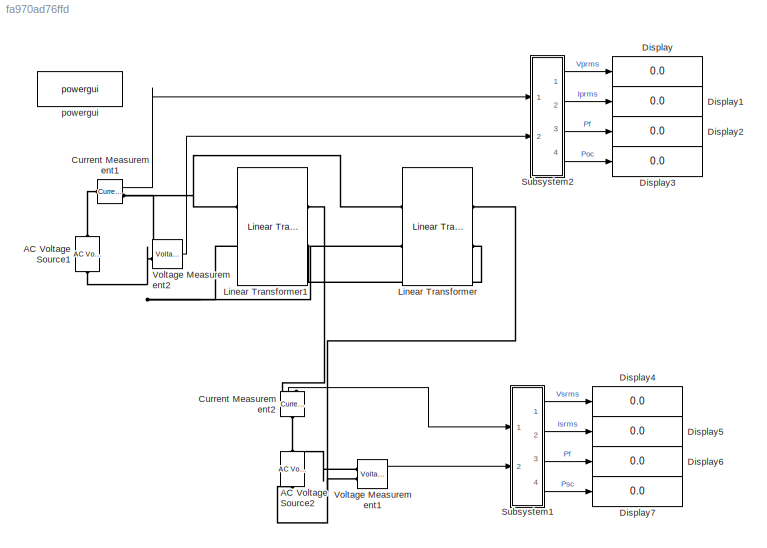
MODEL slx_fa970ad76ffd
KIND model
CONFIG AbsTol = auto
CONFIG EnableMultiTasking = off
CONFIG FixedStep = auto
CONFIG MaxStep = auto
CONFIG MinStep = auto
CONFIG RelTol = 1e-3
CONFIG SampleTimeConstraint = Unconstrained
CONFIG Solver = VariableStepAuto
CONFIG SolverName = VariableStepAuto
CONFIG StartTime = 0.0
CONFIG StopTime = 10.0
BLOCK [Reference] AC Voltage Source1  REF=powerlib/Electrical
Sources/AC Voltage Source
  NameLocation = right
  Ports = [0, 0, 0, 0, 0, 1, 1]
  SourceBlock = powerlib/Electrical\nSources/AC Voltage Source
  SourceProductBaseCode = PS
  SourceType = AC Voltage Source
BLOCK [Reference] AC Voltage Source2  REF=powerlib/Electrical
Sources/AC Voltage Source
  NameLocation = right
  Ports = [0, 0, 0, 0, 0, 1, 1]
  SourceBlock = powerlib/Electrical\nSources/AC Voltage Source
  SourceProductBaseCode = PS
  SourceType = AC Voltage Source
BLOCK [Reference] Current Measurement1  REF=powerlib/Measurements/Current Measurement
  Ports = [0, 1, 0, 0, 0, 1, 1]
  SourceBlock = powerlib/Measurements/Current Measurement
  SourceProductBaseCode = PS
  SourceType = Current Measurement
  UserDataPersistent = on
BLOCK [Reference] Current Measurement2  REF=powerlib/Measurements/Current Measurement
  NameLocation = right
  Ports = [0, 1, 0, 0, 0, 1, 1]
  SourceBlock = powerlib/Measurements/Current Measurement
  SourceProductBaseCode = PS
  SourceType = Current Measurement
  UserDataPersistent = on
BLOCK [Display] Display
  Decimation = 1
  Ports = [1]
BLOCK [Display] Display1
  Decimation = 1
  Ports = [1]
BLOCK [Display] Display2
  Decimation = 1
  Ports = [1]
BLOCK [Display] Display3
  Decimation = 1
  Ports = [1]
BLOCK [Display] Display4
  Decimation = 1
  Ports = [1]
BLOCK [Display] Display5
  Decimation = 1
  Ports = [1]
BLOCK [Display] Display6
  Decimation = 1
  Ports = [1]
BLOCK [Display] Display7
  Decimation = 1
  Ports = [1]
BLOCK [Reference] Linear Transformer  REF=powerlib/Elements/Linear Transformer
  Ports = [0, 0, 0, 0, 0, 2, 2]
  SourceBlock = powerlib/Elements/Linear Transformer
  SourceProductBaseCode = PS
  SourceType = Linear Transformer
BLOCK [Reference] Linear Transformer1  REF=powerlib/Elements/Linear Transformer
  Ports = [0, 0, 0, 0, 0, 2, 2]
  SourceBlock = powerlib/Elements/Linear Transformer
  SourceProductBaseCode = PS
  SourceType = Linear Transformer
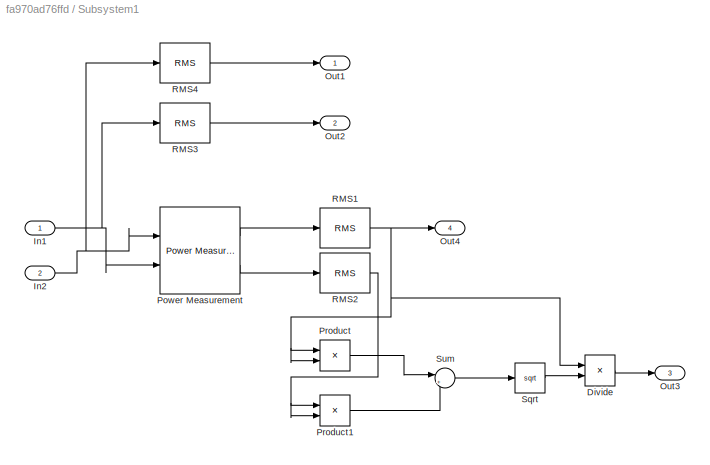
BLOCK [SubSystem] Subsystem1
  Ports = [2, 4]
  RequestExecContextInheritance = off
BLOCK [Product] Subsystem1/Divide
  Inputs = */
  Ports = [2, 1]
BLOCK [Inport] Subsystem1/In1
BLOCK [Inport] Subsystem1/In2
  Port = 2
BLOCK [Outport] Subsystem1/Out1
BLOCK [Outport] Subsystem1/Out2
  Port = 2
BLOCK [Outport] Subsystem1/Out3
  Port = 3
BLOCK [Outport] Subsystem1/Out4
  Port = 4
BLOCK [Reference] Subsystem1/Power Measurement  REF=eePowerMeasurement/Power
Measurement
  Ports = [2, 2]
  SourceBlock = eePowerMeasurement/Power\nMeasurement
  SourceProductBaseCode = PS
  SourceType = Power Measurement
BLOCK [Product] Subsystem1/Product
  Ports = [2, 1]
BLOCK [Product] Subsystem1/Product1
  Ports = [2, 1]
BLOCK [Reference] Subsystem1/RMS1  REF=powerlib_meascontrol/Measurements/RMS
  Ports = [1, 1]
  SourceBlock = powerlib_meascontrol/Measurements/RMS
  SourceProductBaseCode = PS
  SourceType = RMS
BLOCK [Reference] Subsystem1/RMS2  REF=powerlib_meascontrol/Measurements/RMS
  Ports = [1, 1]
  SourceBlock = powerlib_meascontrol/Measurements/RMS
  SourceProductBaseCode = PS
  SourceType = RMS
BLOCK [Reference] Subsystem1/RMS3  REF=powerlib_meascontrol/Measurements/RMS
  Ports = [1, 1]
  SourceBlock = powerlib_meascontrol/Measurements/RMS
  SourceProductBaseCode = PS
  SourceType = RMS
BLOCK [Reference] Subsystem1/RMS4  REF=powerlib_meascontrol/Measurements/RMS
  Ports = [1, 1]
  SourceBlock = powerlib_meascontrol/Measurements/RMS
  SourceProductBaseCode = PS
  SourceType = RMS
BLOCK [Sqrt] Subsystem1/Sqrt
BLOCK [Sum] Subsystem1/Sum
  Inputs = |++
  Ports = [2, 1]
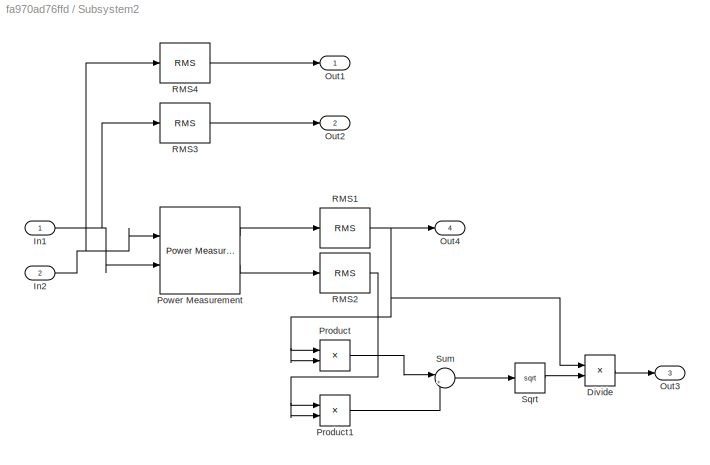
BLOCK [SubSystem] Subsystem2
  Ports = [2, 4]
  RequestExecContextInheritance = off
BLOCK [Product] Subsystem2/Divide
  Inputs = */
  Ports = [2, 1]
BLOCK [Inport] Subsystem2/In1
BLOCK [Inport] Subsystem2/In2
  Port = 2
BLOCK [Outport] Subsystem2/Out1
BLOCK [Outport] Subsystem2/Out2
  Port = 2
BLOCK [Outport] Subsystem2/Out3
  Port = 3
BLOCK [Outport] Subsystem2/Out4
  Port = 4
BLOCK [Reference] Subsystem2/Power Measurement  REF=eePowerMeasurement/Power
Measurement
  Ports = [2, 2]
  SourceBlock = eePowerMeasurement/Power\nMeasurement
  SourceProductBaseCode = PS
  SourceType = Power Measurement
BLOCK [Product] Subsystem2/Product
  Ports = [2, 1]
BLOCK [Product] Subsystem2/Product1
  Ports = [2, 1]
BLOCK [Reference] Subsystem2/RMS1  REF=powerlib_meascontrol/Measurements/RMS
  Ports = [1, 1]
  SourceBlock = powerlib_meascontrol/Measurements/RMS
  SourceProductBaseCode = PS
  SourceType = RMS
BLOCK [Reference] Subsystem2/RMS2  REF=powerlib_meascontrol/Measurements/RMS
  Ports = [1, 1]
  SourceBlock = powerlib_meascontrol/Measurements/RMS
  SourceProductBaseCode = PS
  SourceType = RMS
BLOCK [Reference] Subsystem2/RMS3  REF=powerlib_meascontrol/Measurements/RMS
  Ports = [1, 1]
  SourceBlock = powerlib_meascontrol/Measurements/RMS
  SourceProductBaseCode = PS
  SourceType = RMS
BLOCK [Reference] Subsystem2/RMS4  REF=powerlib_meascontrol/Measurements/RMS
  Ports = [1, 1]
  SourceBlock = powerlib_meascontrol/Measurements/RMS
  SourceProductBaseCode = PS
  SourceType = RMS
BLOCK [Sqrt] Subsystem2/Sqrt
BLOCK [Sum] Subsystem2/Sum
  Inputs = |++
  Ports = [2, 1]
BLOCK [Reference] Voltage Measurement1  REF=powerlib/Measurements/Voltage Measurement
  Ports = [0, 1, 0, 0, 0, 2]
  SourceBlock = powerlib/Measurements/Voltage Measurement
  SourceProductBaseCode = PS
  SourceType = Voltage Measurement
  UserDataPersistent = on
BLOCK [Reference] Voltage Measurement2  REF=powerlib/Measurements/Voltage Measurement
  Ports = [0, 1, 0, 0, 0, 2]
  SourceBlock = powerlib/Measurements/Voltage Measurement
  SourceProductBaseCode = PS
  SourceType = Voltage Measurement
  UserDataPersistent = on
BLOCK [Reference] powergui  REF=powerlib/powergui
  Ports = []
  Priority = 1
  SourceBlock = powerlib/powergui
  SourceProductBaseCode = PS
  SourceType = PSB option menu block
LINE Current Measurement1:1 -> Subsystem2:1
LINE Current Measurement2:1 -> Subsystem1:1
LINE Subsystem1/Divide:1 -> Subsystem1/Out3:1
NET Subsystem1/In1:1 -> Subsystem1/Power Measurement:2, Subsystem1/RMS3:1
NET Subsystem1/In2:1 -> Subsystem1/Power Measurement:1, Subsystem1/RMS4:1
LINE Subsystem1/Power Measurement:1 -> Subsystem1/RMS1:1
LINE Subsystem1/Power Measurement:2 -> Subsystem1/RMS2:1
LINE Subsystem1/Product1:1 -> Subsystem1/Sum:2
LINE Subsystem1/Product:1 -> Subsystem1/Sum:1
NET Subsystem1/RMS1:1 -> Subsystem1/Divide:1, Subsystem1/Out4:1, Subsystem1/Product:1, Subsystem1/Product:2
NET Subsystem1/RMS2:1 -> Subsystem1/Product1:1, Subsystem1/Product1:2
LINE Subsystem1/RMS3:1 -> Subsystem1/Out2:1
LINE Subsystem1/RMS4:1 -> Subsystem1/Out1:1
LINE Subsystem1/Sqrt:1 -> Subsystem1/Divide:2
LINE Subsystem1/Sum:1 -> Subsystem1/Sqrt:1
LINE Subsystem1:1 -> Display4:1
LINE Subsystem1:2 -> Display5:1
LINE Subsystem1:3 -> Display6:1
LINE Subsystem1:4 -> Display7:1
LINE Subsystem2/Divide:1 -> Subsystem2/Out3:1
NET Subsystem2/In1:1 -> Subsystem2/Power Measurement:2, Subsystem2/RMS3:1
NET Subsystem2/In2:1 -> Subsystem2/Power Measurement:1, Subsystem2/RMS4:1
LINE Subsystem2/Power Measurement:1 -> Subsystem2/RMS1:1
LINE Subsystem2/Power Measurement:2 -> Subsystem2/RMS2:1
LINE Subsystem2/Product1:1 -> Subsystem2/Sum:2
LINE Subsystem2/Product:1 -> Subsystem2/Sum:1
NET Subsystem2/RMS1:1 -> Subsystem2/Divide:1, Subsystem2/Out4:1, Subsystem2/Product:1, Subsystem2/Product:2
NET Subsystem2/RMS2:1 -> Subsystem2/Product1:1, Subsystem2/Product1:2
LINE Subsystem2/RMS3:1 -> Subsystem2/Out2:1
LINE Subsystem2/RMS4:1 -> Subsystem2/Out1:1
LINE Subsystem2/Sqrt:1 -> Subsystem2/Divide:2
LINE Subsystem2/Sum:1 -> Subsystem2/Sqrt:1
LINE Subsystem2:1 -> Display:1
LINE Subsystem2:2 -> Display1:1
LINE Subsystem2:3 -> Display2:1
LINE Subsystem2:4 -> Display3:1
LINE Voltage Measurement1:1 -> Subsystem1:2
LINE Voltage Measurement2:1 -> Subsystem2:2
PNET net1: AC Voltage Source1:LConn1 -- Linear Transformer1:LConn2 -- Linear Transformer:LConn2 -- Voltage Measurement2:LConn2
PLINE AC Voltage Source1:RConn1 -- Current Measurement1:LConn1
PNET net2: AC Voltage Source2:LConn1 -- Linear Transformer:RConn1 -- Voltage Measurement1:LConn2
PNET net3: AC Voltage Source2:RConn1 -- Current Measurement2:LConn1 -- Voltage Measurement1:LConn1
PNET net4: Current Measurement1:RConn1 -- Linear Transformer1:LConn1 -- Linear Transformer:LConn1 -- Voltage Measurement2:LConn1
PLINE Current Measurement2:RConn1 -- Linear Transformer1:RConn1
PLINE Linear Transformer1:RConn2 -- Linear Transformer:RConn2
note: NET lines group one-source signal fan-out (src -> all destinations, sorted); 1:1 wires keep LINE; PNET lines group multi-terminal physical nets as a canonical sorted terminal list (undirected conserving connections); 2-terminal nets keep the pairwise PLINE form
